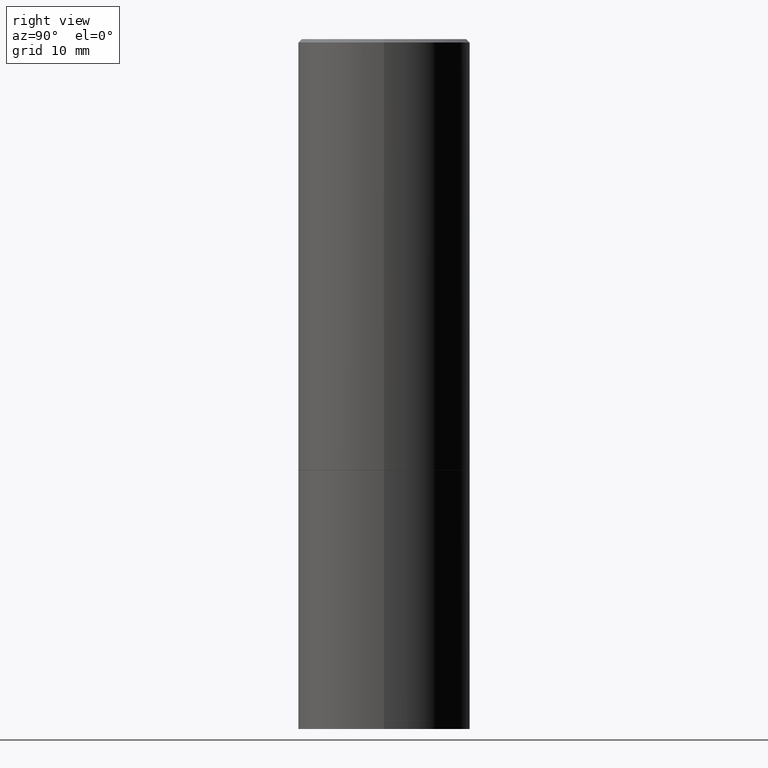
[diagram: clean part render]
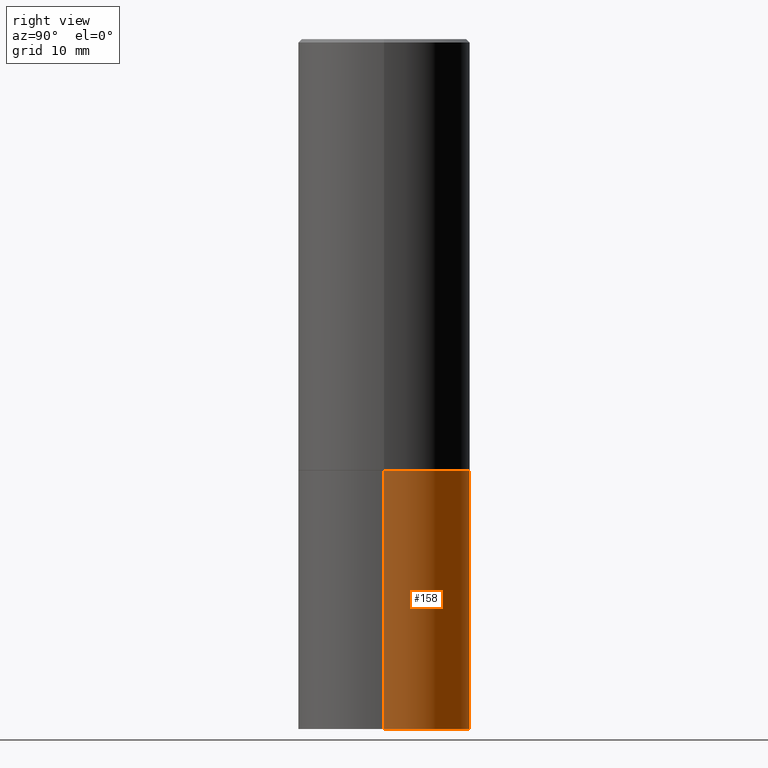
[diagram: same view with one face highlighted and labeled with its STEP entity id]
A machine part, right view. The second image highlights one B-rep face of the part: STEP entity #158.
In plain terms, the highlighted cylindrical surface (partial cylindrical patch) has radius 12.7 mm, axis along (-0, 0, 1).
Its self-contained STEP definition (entity closure, byte-faithful):
#3 = VERTEX_POINT ( 'NONE', #291 ) ;
#5 = DIRECTION ( 'NONE',  ( -2.445468806185136877E-29, 3.491481338843145188E-15, 1.000000000000000000 ) ) ;
#18 = EDGE_CURVE ( 'NONE', #85, #51, #190, .T. ) ;
#23 = CYLINDRICAL_SURFACE ( 'NONE', #356, 0.5000000000000000000 ) ;
#24 = EDGE_LOOP ( 'NONE', ( #262, #160, #287, #165 ) ) ;
#51 = VERTEX_POINT ( 'NONE', #296 ) ;
#74 = VECTOR ( 'NONE', #5, 39.37007874015748143 ) ;
#85 = VERTEX_POINT ( 'NONE', #145 ) ;
#95 = EDGE_CURVE ( 'NONE', #85, #163, #266, .T. ) ;
#97 = CARTESIAN_POINT ( 'NONE',  ( 0.5000000000000000000, -3.491481338843133355E-15, 2.438088387897967896E-29 ) ) ;
#107 = EDGE_CURVE ( 'NONE', #51, #3, #205, .T. ) ;
#111 = DIRECTION ( 'NONE',  ( 1.000000000000000000, -6.982962677686269077E-15, 0.000000000000000000 ) ) ;
#116 = CARTESIAN_POINT ( 'NONE',  ( -0.5000000000000000000, 3.552713678800500929E-15, -2.459467545127452891E-29 ) ) ;
#131 = DIRECTION ( 'NONE',  ( -2.445468806185136597E-29, 3.491481338843145583E-15, 1.000000000000000000 ) ) ;
#140 = AXIS2_PLACEMENT_3D ( 'NONE', #201, #319, #175 ) ;
#142 = DIRECTION ( 'NONE',  ( -2.445468806185136597E-29, 3.491481338843145583E-15, 1.000000000000000000 ) ) ;
#145 = CARTESIAN_POINT ( 'NONE',  ( 0.5000000000000000000, -1.745740669421571411E-14, -4.000000000000000000 ) ) ;
#158 = ADVANCED_FACE ( 'NONE', ( #285 ), #23, .T. ) ;
#160 = ORIENTED_EDGE ( 'NONE', *, *, #107, .T. ) ;
#162 = VECTOR ( 'NONE', #240, 39.37007874015748143 ) ;
#163 = VERTEX_POINT ( 'NONE', #275 ) ;
#165 = ORIENTED_EDGE ( 'NONE', *, *, #95, .F. ) ;
#175 = DIRECTION ( 'NONE',  ( 1.000000000000000000, -6.982962677686266711E-15, 0.000000000000000000 ) ) ;
#190 = CIRCLE ( 'NONE', #140, 0.5000000000000000000 ) ;
#201 = CARTESIAN_POINT ( 'NONE',  ( 9.781875224740546387E-29, -1.396592535537258233E-14, -4.000000000000000000 ) ) ;
#205 = LINE ( 'NONE', #116, #162 ) ;
#240 = DIRECTION ( 'NONE',  ( -2.445468806185136877E-29, 3.491481338843145188E-15, 1.000000000000000000 ) ) ;
#244 = CARTESIAN_POINT ( 'NONE',  ( 6.113672015462842613E-29, -8.728703347107864943E-15, -2.500000000000000000 ) ) ;
#258 = CARTESIAN_POINT ( 'NONE',  ( 0.000000000000000000, 0.000000000000000000, 0.000000000000000000 ) ) ;
#262 = ORIENTED_EDGE ( 'NONE', *, *, #18, .T. ) ;
#266 = LINE ( 'NONE', #97, #74 ) ;
#275 = CARTESIAN_POINT ( 'NONE',  ( 0.5000000000000000000, -1.222018468595099830E-14, -2.500000000000000000 ) ) ;
#285 = FACE_OUTER_BOUND ( 'NONE', #24, .T. ) ;
#287 = ORIENTED_EDGE ( 'NONE', *, *, #306, .F. ) ;
#291 = CARTESIAN_POINT ( 'NONE',  ( -0.5000000000000000000, -7.794600672439723496E-15, -2.500000000000000000 ) ) ;
#296 = CARTESIAN_POINT ( 'NONE',  ( -0.5000000000000000000, -7.794600672439723496E-15, -4.000000000000000000 ) ) ;
#305 = AXIS2_PLACEMENT_3D ( 'NONE', #244, #142, #111 ) ;
#306 = EDGE_CURVE ( 'NONE', #163, #3, #334, .T. ) ;
#319 = DIRECTION ( 'NONE',  ( -2.445468806185136597E-29, 3.491481338843145583E-15, 1.000000000000000000 ) ) ;
#334 = CIRCLE ( 'NONE', #305, 0.5000000000000000000 ) ;
#356 = AXIS2_PLACEMENT_3D ( 'NONE', #258, #131, #365 ) ;
#365 = DIRECTION ( 'NONE',  ( 1.000000000000000000, -6.982962677686266711E-15, 4.876176775795935793E-29 ) ) ;